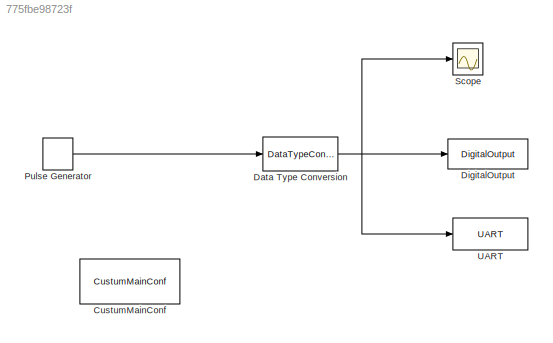
MODEL slx_775fbe98723f
KIND model
BLOCK [Reference] CustumMainConf  REF=mbed_lib/CustumMainConf
  P1 = main.c
  P2 = 0
  Ports = []
  SourceBlock = mbed_lib/CustumMainConf
BLOCK [DataTypeConversion] Data Type Conversion
  OutDataTypeStr = uint8
  RndMeth = Floor
  SaturateOnIntegerOverflow = off
BLOCK [Reference] DigitalOutput  REF=mbed_lib/DigitalOutput
  Ports = [1]
  SParameter1 = 'LED1'
  SParameter2 = -1
  SourceBlock = mbed_lib/DigitalOutput
  SourceType = MBED: DigitalOutput
BLOCK [DiscretePulseGenerator] Pulse Generator
  Ports = [0, 1]
  PulseType = Time based
  PulseWidth = 50
BLOCK [Scope] Scope
  DataFormat = StructureWithTime
  Floating = off
  NumInputPorts = 1
  Ports = [1]
  SampleTime = 0
  ShowLegends = off
BLOCK [Reference] UART  REF=mbed_lib/UART
  Ports = [1]
  SFunctionSpec = double y1 = dummy(int8 p1,int8 p2,int8 p3)
  SParameter1 = 1
  SParameter2 = This program runs since %d seconds.\n
  SParameter3 = -1
  SourceBlock = mbed_lib/UART
  SourceType = MBED: UART
NET Data Type Conversion:1 -> DigitalOutput:1, Scope:1, UART:1
LINE Pulse Generator:1 -> Data Type Conversion:1
note: NET lines group one-source signal fan-out (src -> all destinations, sorted); 1:1 wires keep LINE
